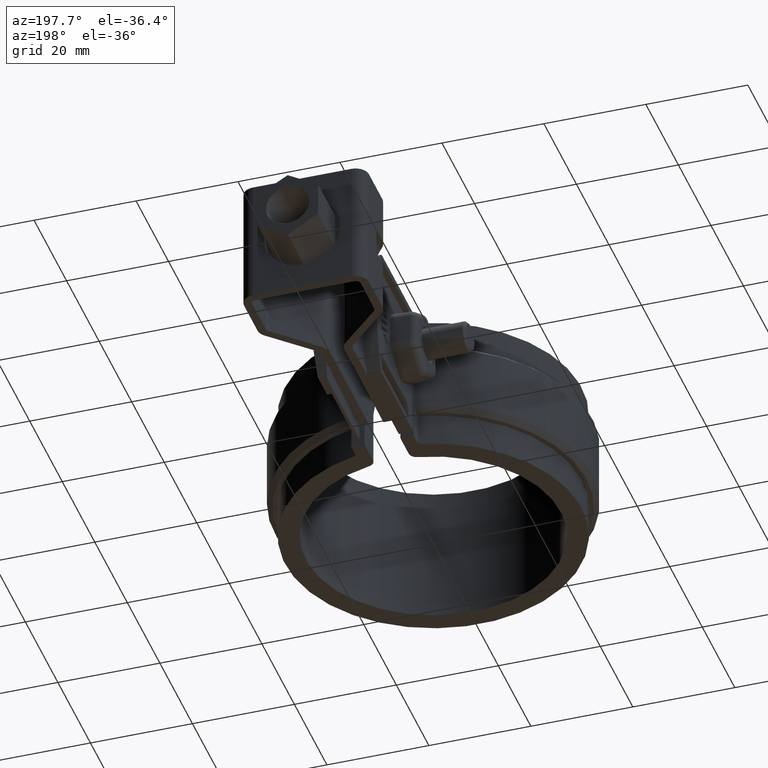
[diagram: clean part render]
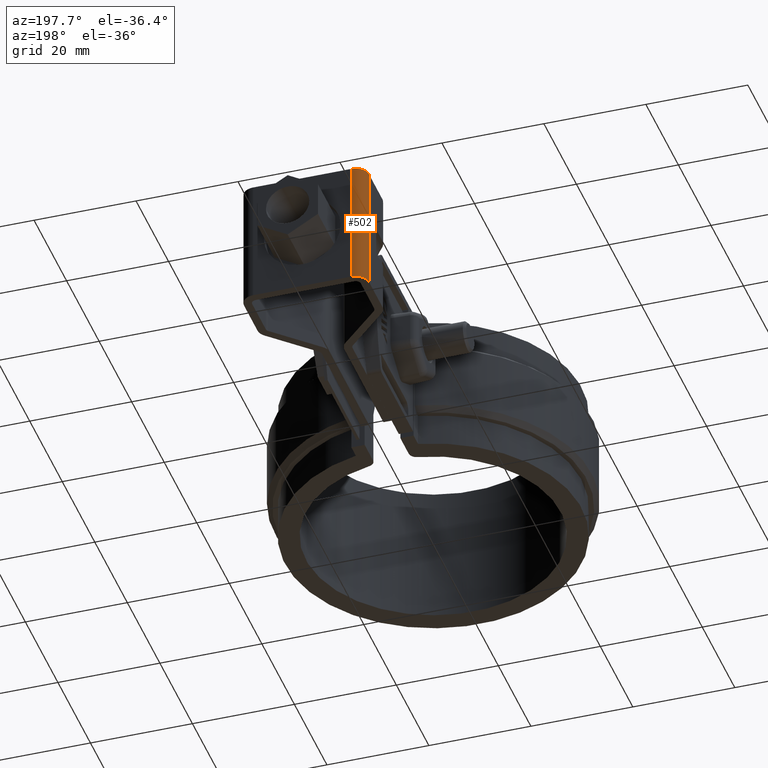
[diagram: same view with one face highlighted and labeled with its STEP entity id]
A machine part, auxiliary view. The second image highlights one B-rep face of the part: STEP entity #502.
In plain terms, the highlighted cylindrical surface (edge-blend (fillet) strip) has radius 2.6 mm, axis along (0, 0, 1).
Its self-contained STEP definition (entity closure, byte-faithful):
#502 = ADVANCED_FACE( '', ( #998 ), #999, .T. );
#998 = FACE_OUTER_BOUND( '', #2370, .T. );
#999 = CYLINDRICAL_SURFACE( '', #2371, 2.59999999999999 );
#2370 = EDGE_LOOP( '', ( #5253, #5254, #5255, #5256 ) );
#2371 = AXIS2_PLACEMENT_3D( '', #5257, #5258, #5259 );
#5253 = ORIENTED_EDGE( '', *, *, #7402, .F. );
#5254 = ORIENTED_EDGE( '', *, *, #7403, .F. );
#5255 = ORIENTED_EDGE( '', *, *, #7395, .T. );
#5256 = ORIENTED_EDGE( '', *, *, #7404, .T. );
#5257 = CARTESIAN_POINT( '', ( -9.65000000064358, 77.8998007548497, -7.01570468386592E-008 ) );
#5258 = DIRECTION( '', ( 2.03765905561465E-012, 5.08856068393049E-010, 1.00000000000000 ) );
#5259 = DIRECTION( '', ( -3.46787463341350E-012, 1.00000000000000, -5.08856068393042E-010 ) );
#7395 = EDGE_CURVE( '', #8657, #8655, #8658, .T. );
#7402 = EDGE_CURVE( '', #8670, #8671, #8672, .T. );
#7403 = EDGE_CURVE( '', #8657, #8670, #8673, .T. );
#7404 = EDGE_CURVE( '', #8655, #8671, #8674, .T. );
#8655 = VERTEX_POINT( '', #12264 );
#8657 = VERTEX_POINT( '', #12267 );
#8658 = CIRCLE( '', #12268, 2.59999999999999 );
#8670 = VERTEX_POINT( '', #12284 );
#8671 = VERTEX_POINT( '', #12285 );
#8672 = CIRCLE( '', #12286, 2.59999999999999 );
#8673 = LINE( '', #12287, #12288 );
#8674 = LINE( '', #12289, #12290 );
#12264 = CARTESIAN_POINT( '', ( -9.65000000065260, 80.4998007548496, -7.14800718615294E-008 ) );
#12267 = CARTESIAN_POINT( '', ( -12.2500000006436, 77.8998007548406, -7.01517455237166E-008 ) );
#12268 = AXIS2_PLACEMENT_3D( '', #14188, #14189, #14190 );
#12284 = CARTESIAN_POINT( '', ( -12.2500000006945, 77.8998007421192, -25.0000000701518 ) );
#12285 = CARTESIAN_POINT( '', ( -9.65000000070354, 80.4998007421282, -25.0000000714801 ) );
#12286 = AXIS2_PLACEMENT_3D( '', #14201, #14202, #14203 );
#12287 = CARTESIAN_POINT( '', ( -12.2500000006436, 77.8998007548406, -7.01517455237166E-008 ) );
#12288 = VECTOR( '', #14204, 1000.00000000000 );
#12289 = CARTESIAN_POINT( '', ( -9.65000000065260, 80.4998007548496, -7.14800718615294E-008 ) );
#12290 = VECTOR( '', #14205, 1000.00000000000 );
#14188 = CARTESIAN_POINT( '', ( -9.65000000064358, 77.8998007548497, -7.01570468386592E-008 ) );
#14189 = DIRECTION( '', ( -2.03765905561465E-012, -5.08856068393049E-010, -1.00000000000000 ) );
#14190 = DIRECTION( '', ( -1.00000000000000, -3.46787463237663E-012, 2.03765905737930E-012 ) );
#14201 = CARTESIAN_POINT( '', ( -9.65000000069453, 77.8998007421282, -25.0000000701571 ) );
#14202 = DIRECTION( '', ( -2.03765905561465E-012, -5.08856068393049E-010, -1.00000000000000 ) );
#14203 = DIRECTION( '', ( -1.00000000000000, -3.46787463237663E-012, 2.03765905737930E-012 ) );
#14204 = DIRECTION( '', ( -2.03765905561465E-012, -5.08856068393049E-010, -1.00000000000000 ) );
#14205 = DIRECTION( '', ( -2.03765905561465E-012, -5.08856068393049E-010, -1.00000000000000 ) );